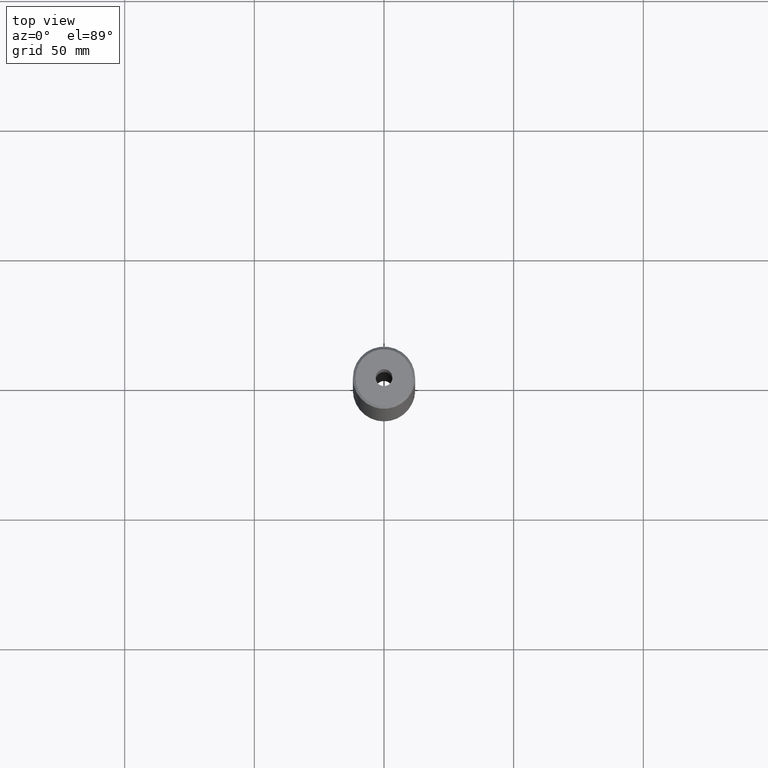
[diagram: clean part render]
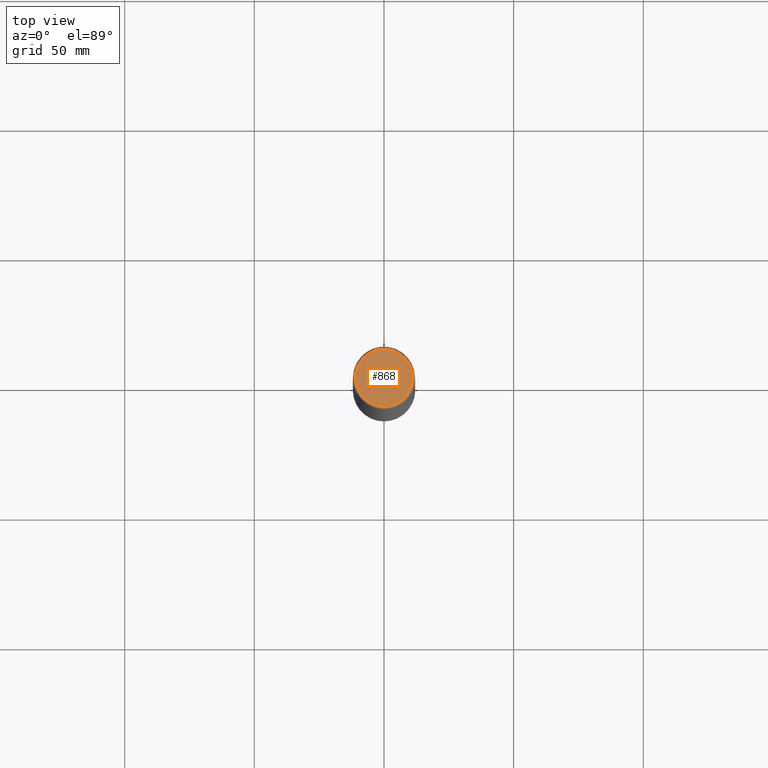
[diagram: same view with one face highlighted and labeled with its STEP entity id]
A machine part, top view. The second image highlights one B-rep face of the part: STEP entity #868.
In plain terms, the highlighted planar face has unit normal (0, -0, 1).
Its self-contained STEP definition (entity closure, byte-faithful):
#372=VERTEX_POINT('NONE',#1069);
#468=VERTEX_POINT('NONE',#1180);
#702=VERTEX_POINT('NONE',#1439);
#814=EDGE_CURVE('NONE',#468,#1028,#1564,.T.);
#868=ADVANCED_FACE('NONE',(#1623,#1624),#1625,.T.);
#928=EDGE_CURVE('NONE',#702,#372,#1693,.T.);
#952=EDGE_CURVE('NONE',#1028,#468,#1719,.T.);
#968=EDGE_CURVE('NONE',#372,#702,#1736,.T.);
#1028=VERTEX_POINT('NONE',#1801);
#1069=CARTESIAN_POINT('',(-10.9999999999999,0.0,280.0));
#1180=CARTESIAN_POINT('',(3.25,0.0,280.0));
#1439=CARTESIAN_POINT('',(10.9999999999999,1.40829730689573E-015,280.0));
#1564=CIRCLE('',#2596,3.25);
#1623=FACE_OUTER_BOUND('',#2685,.T.);
#1624=FACE_BOUND('',#2686,.T.);
#1625=PLANE('',#2687);
#1693=CIRCLE('',#2813,10.9999999999999);
#1719=CIRCLE('',#2848,3.25);
#1736=CIRCLE('',#2875,10.9999999999999);
#1801=CARTESIAN_POINT('',(-3.25,3.97997064992273E-016,280.0));
#2596=AXIS2_PLACEMENT_3D('',#3646,#3647,#3648);
#2685=EDGE_LOOP('',(#3713,#3714));
#2686=EDGE_LOOP('',(#3715,#3716));
#2687=AXIS2_PLACEMENT_3D('',#3717,#3718,#3719);
#2813=AXIS2_PLACEMENT_3D('',#3794,#3795,#3796);
#2848=AXIS2_PLACEMENT_3D('',#3823,#3824,#3825);
#2875=AXIS2_PLACEMENT_3D('',#3842,#3843,#3844);
#3646=CARTESIAN_POINT('',(0.0,0.0,280.0));
#3647=DIRECTION('',(0.0,0.0,-1.0));
#3648=DIRECTION('',(0.0,-1.0,0.0));
#3713=ORIENTED_EDGE('',*,*,#968,.T.);
#3714=ORIENTED_EDGE('',*,*,#928,.T.);
#3715=ORIENTED_EDGE('',*,*,#814,.T.);
#3716=ORIENTED_EDGE('',*,*,#952,.T.);
#3717=CARTESIAN_POINT('',(0.0,-3.12274620224706E-014,280.0));
#3718=DIRECTION('',(0.0,-1.22306684165659E-016,1.0));
#3719=DIRECTION('',(0.0,1.0,1.22306684165659E-016));
#3794=CARTESIAN_POINT('',(0.0,0.0,280.0));
#3795=DIRECTION('',(0.0,0.0,1.0));
#3796=DIRECTION('',(0.0,-1.0,0.0));
#3823=CARTESIAN_POINT('',(0.0,0.0,280.0));
#3824=DIRECTION('',(0.0,0.0,-1.0));
#3825=DIRECTION('',(0.0,-1.0,0.0));
#3842=CARTESIAN_POINT('',(0.0,0.0,280.0));
#3843=DIRECTION('',(0.0,0.0,1.0));
#3844=DIRECTION('',(0.0,-1.0,0.0));